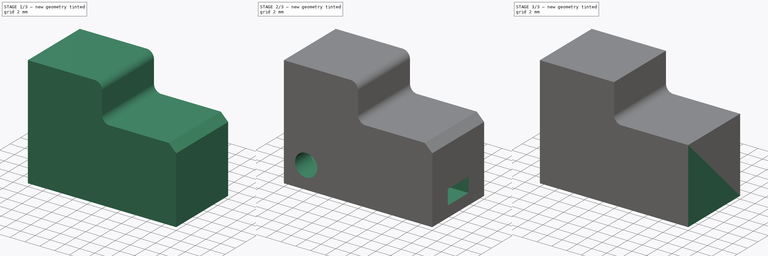
[diagram: build sequence overview — one tinted view per stage of 3, left to right]
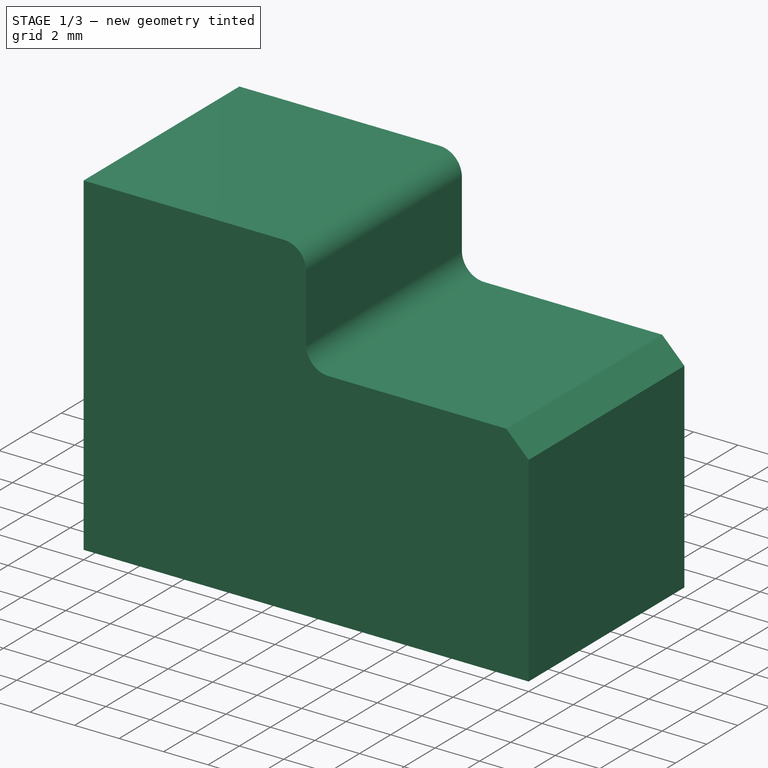
[diagram: stage 1 of 3 — iso view after this stage's code; geometry added in this stage tinted green]
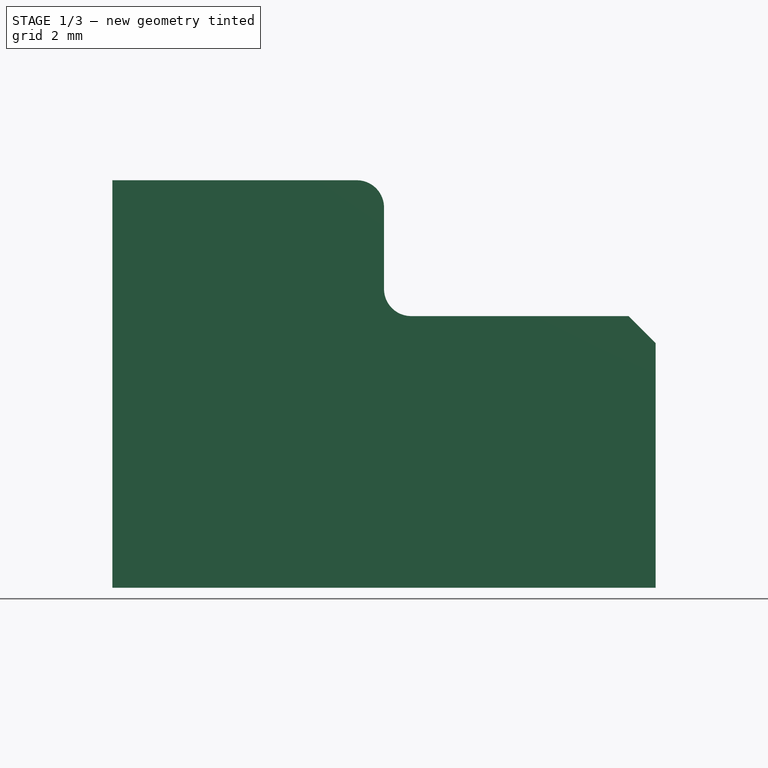
[diagram: stage 1 of 3 — front view after this stage's code; geometry added in this stage tinted green]
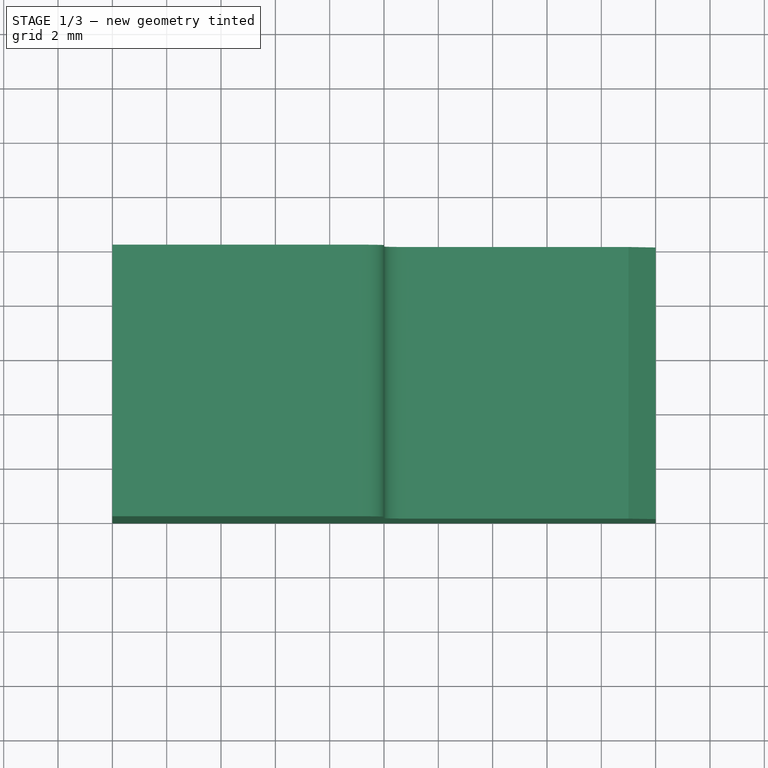
[diagram: stage 1 of 3 — top view after this stage's code; geometry added in this stage tinted green]
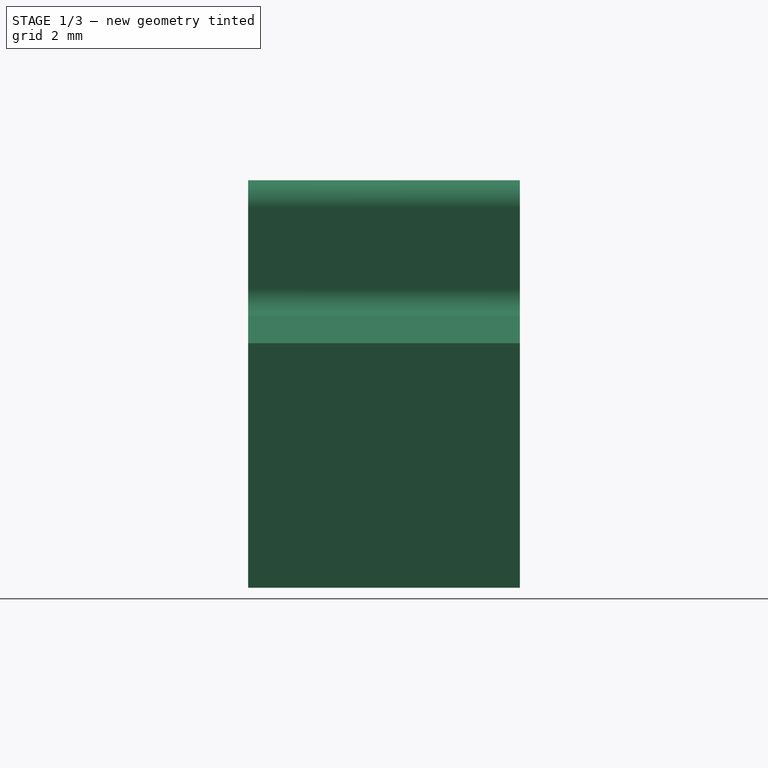
[diagram: stage 1 of 3 — right view after this stage's code; geometry added in this stage tinted green]
FCSTD DOCUMENT  (FreeCAD 0.14R3702 (Git))
Label: suavizado aristas
License: CC-BY 3.0
LicenseURL: http://creativecommons.org/licenses/by/3.0/
objects: Part::Box×2, Part::Fillet×2, Sketcher::SketchObject×2, PartDesign::Pocket×2, Part::MultiFuse×1, Part::Feature×1, Part::Chamfer×1
note: 13 computed .brp shape members not serialized (recipe doc carries the construction recipe); baked Part::Feature solids carry a one-line shape summary decoded from their .brp

FEATURE [Part::Feature] Fusion001  label="My_Pieza001"
  shape: bbox 20 x 10 x 15 mm, 8 faces (baked)
FEATURE [Part::Fillet] Fillet
  Base = -> Fusion001
  Edges = 1 edges r=1: [Edge6]
FEATURE [Part::Chamfer] Chamfer
  Base = -> Fillet
  Edges = 1 edges r=1: [Edge21]
FEATURE [Part::Fillet] Fillet001
  Base = -> Chamfer
  Edges = 1 edges r=1: [Edge10]
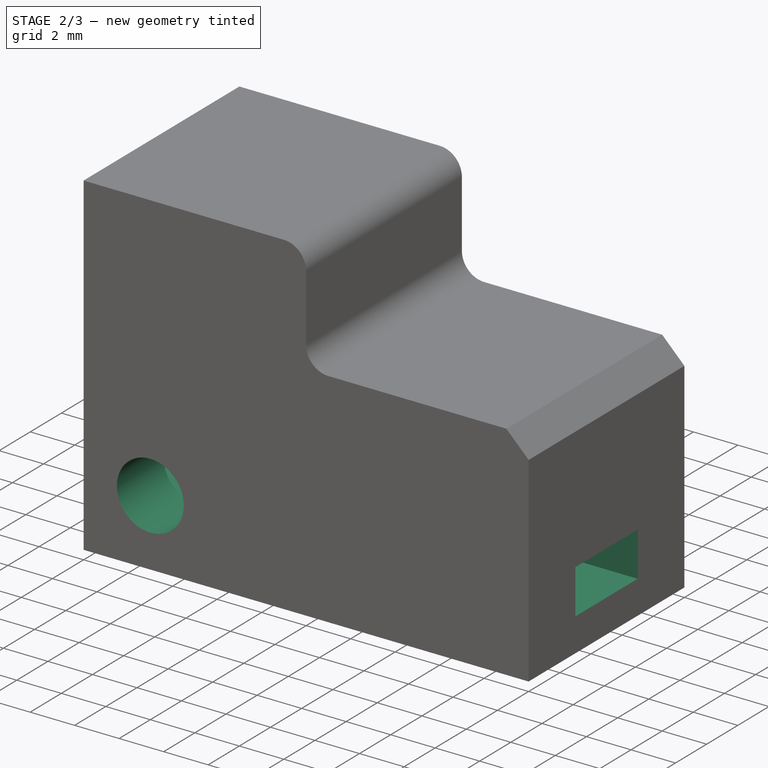
[diagram: stage 2 of 3 — iso view after this stage's code; geometry added in this stage tinted green]
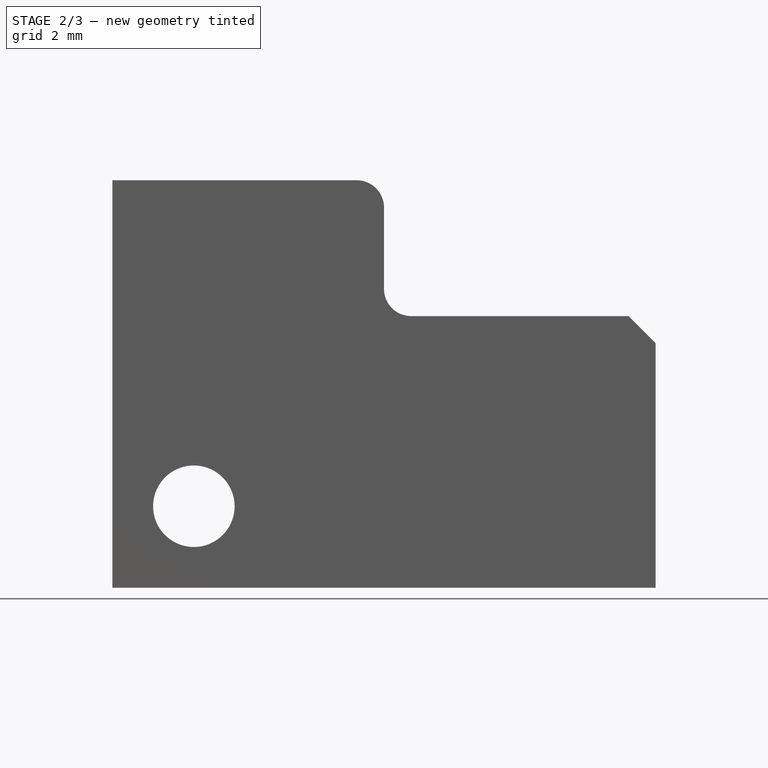
[diagram: stage 2 of 3 — front view after this stage's code; geometry added in this stage tinted green]
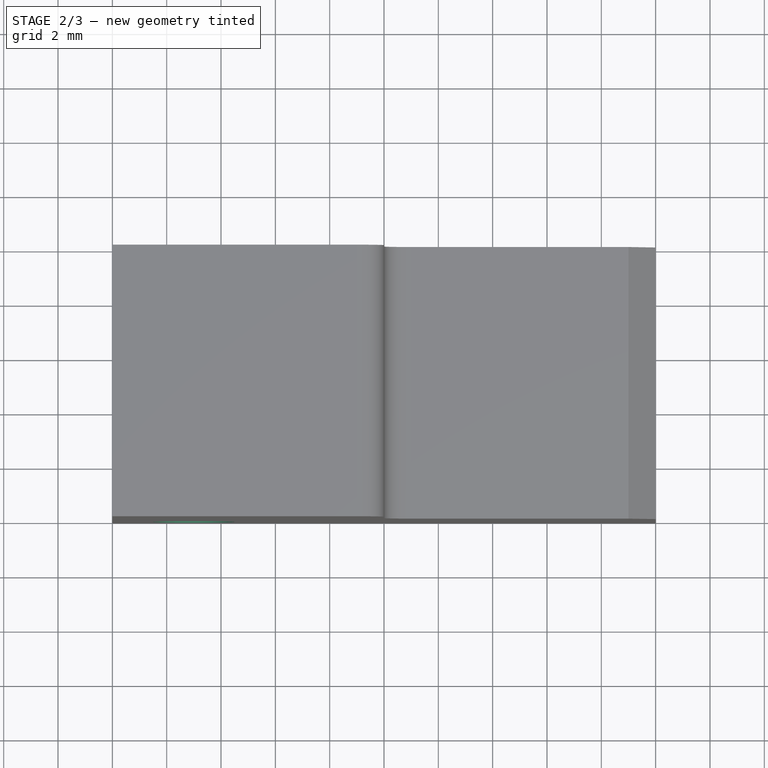
[diagram: stage 2 of 3 — top view after this stage's code; geometry added in this stage tinted green]
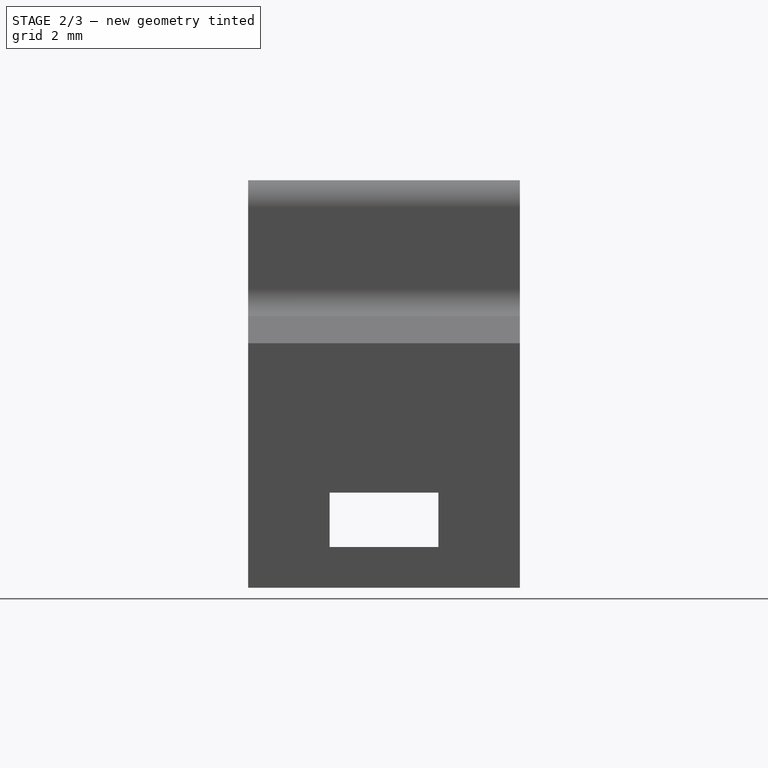
[diagram: stage 2 of 3 — right view after this stage's code; geometry added in this stage tinted green]
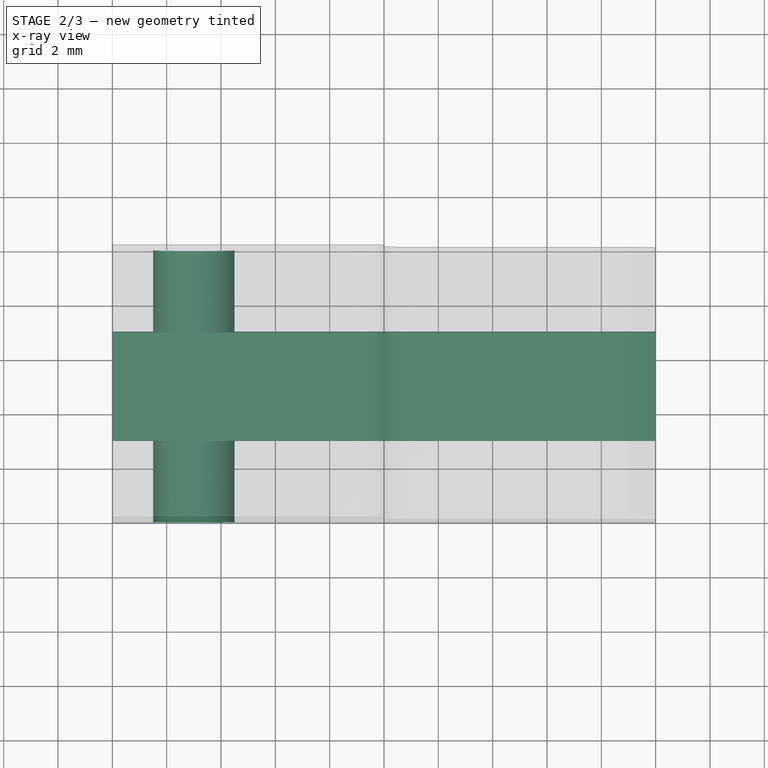
[diagram: stage 2 of 3 — x-ray composite at the top view; earlier geometry ghosted, this stage's added geometry solid]
FEATURE [Sketcher::SketchObject] Sketch
  ExternalGeometry = -> [Fillet001]
  Placement = pos=(0,0,0) rot=(1,0,0;1.5708rad)
  Support = -> Fillet001 [Face11]
  sketch-geometry (2):
    g0: LineSegment [constr] StartX=10.7489 StartY=9.93819 StartZ=0 EndX=-0.048744 EndY=9.97504 EndZ=0
    g1: Circle CenterX=3 CenterY=3 CenterZ=0 NormalX=0 NormalY=0 NormalZ=1 Radius=1.5
  constraints (3):
    c: DistanceX(g-1,g1) = 3
    c: DistanceY(g-1,g1) = 3
    c: Radius(g1) = 1.5
FEATURE [PartDesign::Pocket] Pocket
  Length = 5
  Sketch = -> Sketch
  Type = 1
FEATURE [Sketcher::SketchObject] Sketch001
  ExternalGeometry = -> [Pocket]
  Placement = pos=(20,0,0) rot=(0.57735,0.57735,0.57735;2.0944rad)
  Support = -> Pocket [Face6]
  sketch-geometry (4):
    g0: LineSegment StartX=3 StartY=3.5 StartZ=0 EndX=7 EndY=3.5 EndZ=0
    g1: LineSegment StartX=7 StartY=3.5 StartZ=0 EndX=7 EndY=1.5 EndZ=0
    g2: LineSegment StartX=7 StartY=1.5 StartZ=0 EndX=3 EndY=1.5 EndZ=0
    g3: LineSegment StartX=3 StartY=1.5 StartZ=0 EndX=3 EndY=3.5 EndZ=0
  constraints (12):
    c: Coincident(g0,g1)
    c: Coincident(g1,g2)
    c: Coincident(g2,g3)
    c: Coincident(g3,g0)
    c: Horizontal(g0)
    c: Horizontal(g2)
    c: Vertical(g1)
    c: Vertical(g3)
    c: DistanceX(g-1,g2) = 3
    c: DistanceX(g0,g-3) = 3
    c: DistanceY(g1,g0) = 2
    c: DistanceY(g-1,g2) = 1.5
FEATURE [PartDesign::Pocket] Pocket001
  Length = 5
  Sketch = -> Sketch001
  Type = 1
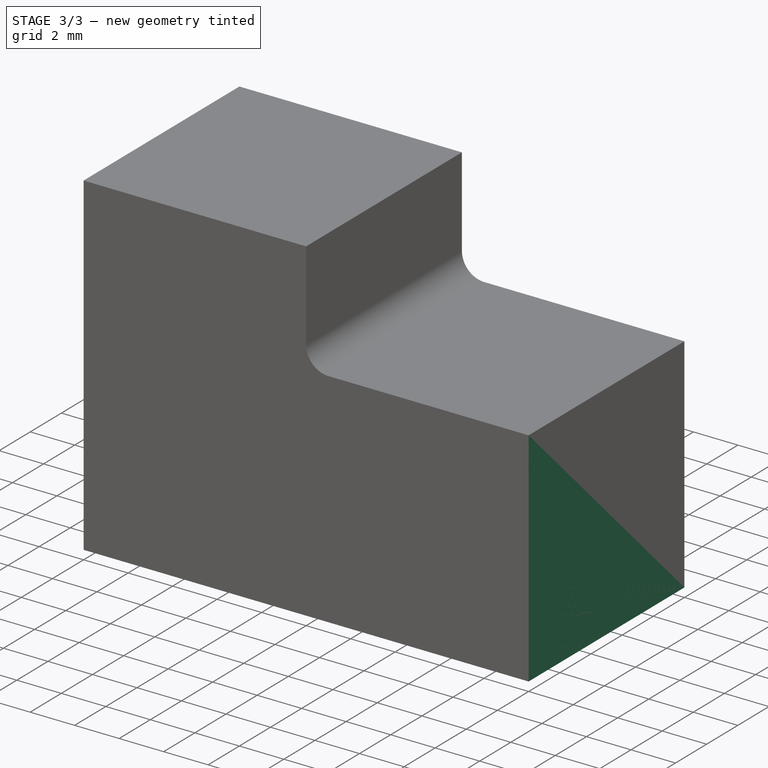
[diagram: stage 3 of 3 — iso view after this stage's code; geometry added in this stage tinted green]
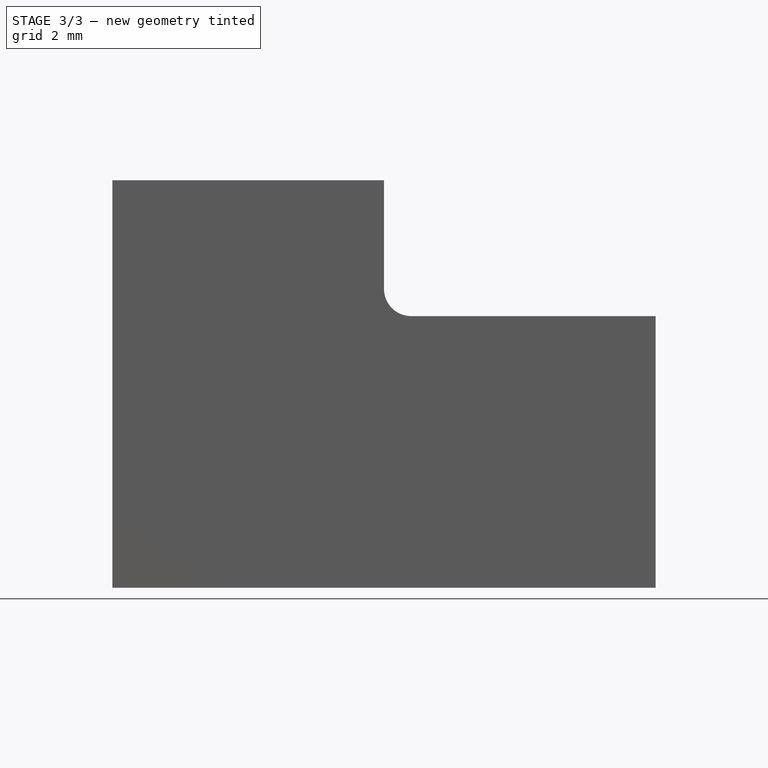
[diagram: stage 3 of 3 — front view after this stage's code; geometry added in this stage tinted green]
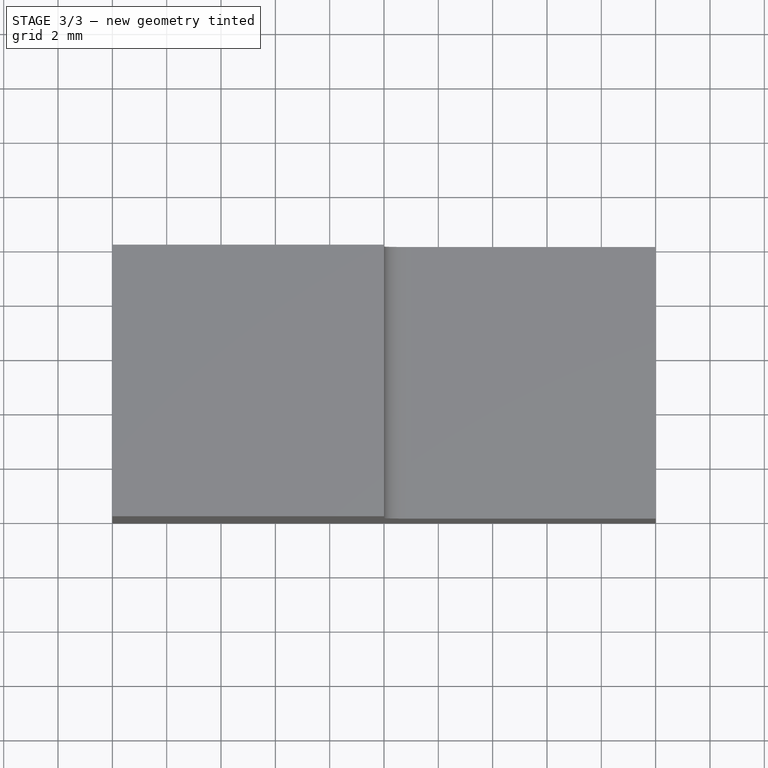
[diagram: stage 3 of 3 — top view after this stage's code; geometry added in this stage tinted green]
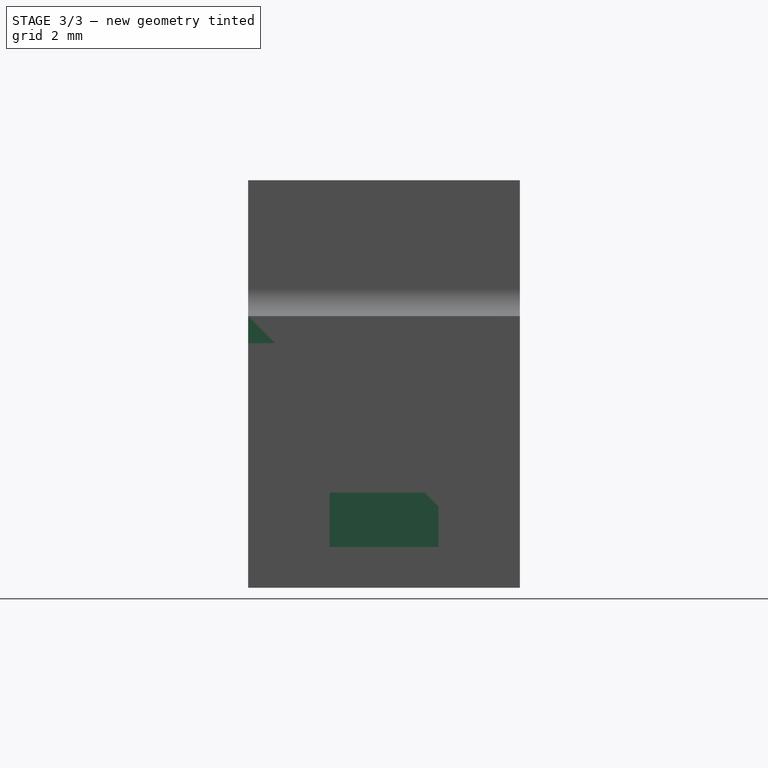
[diagram: stage 3 of 3 — right view after this stage's code; geometry added in this stage tinted green]
FEATURE [Part::Box] Box  label="Cubo"
  Height = 15
  Length = 10
  Width = 10
FEATURE [Part::Box] Box001  label="Cubo001"
  Height = 10
  Length = 10
  Placement = pos=(10,0,0) rot=(0,0,1;0rad)
  Width = 10
FEATURE [Part::MultiFuse] Fusion  label="My_Pieza"
  Shapes = -> [Box001,Box]
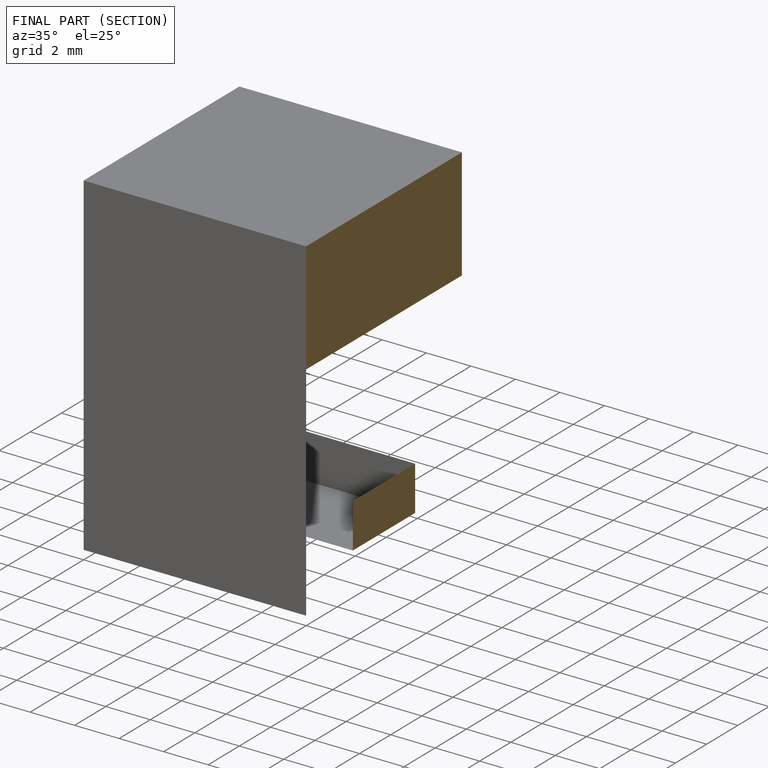
[diagram: finished part — half-section view (interior)]
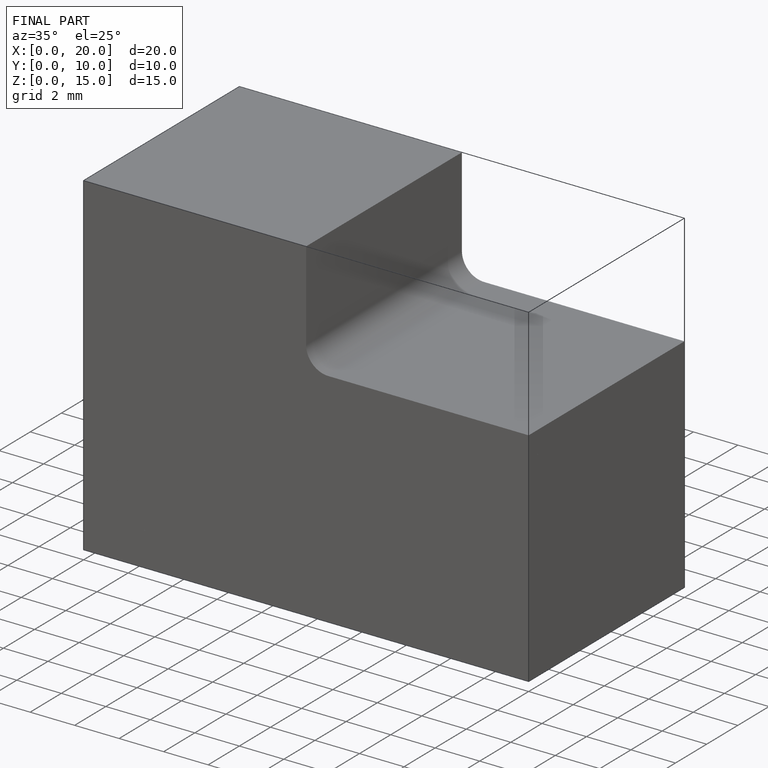
[diagram: finished part — iso view with bounding-box wireframe]
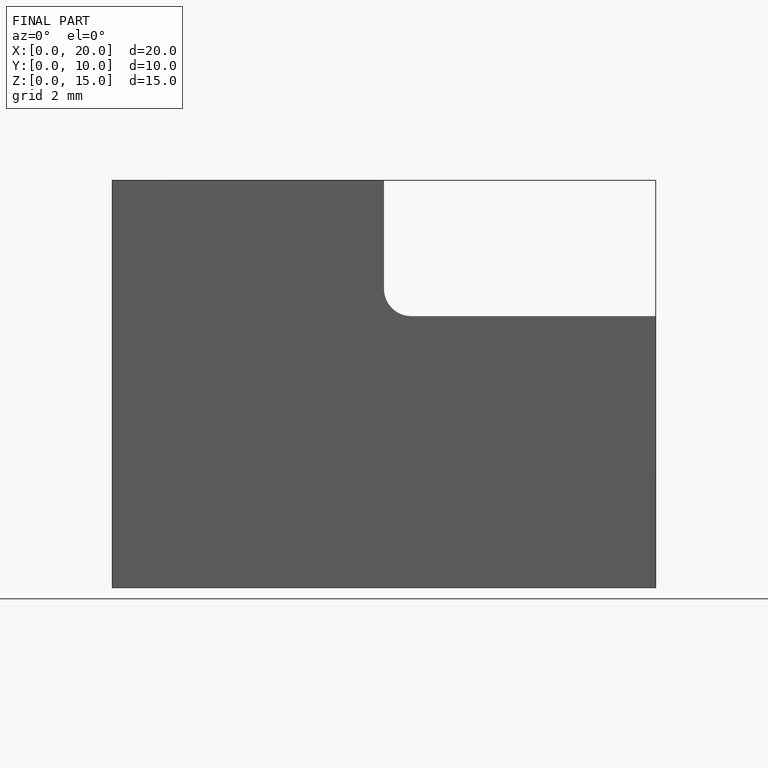
[diagram: finished part — front view with bounding-box wireframe]
